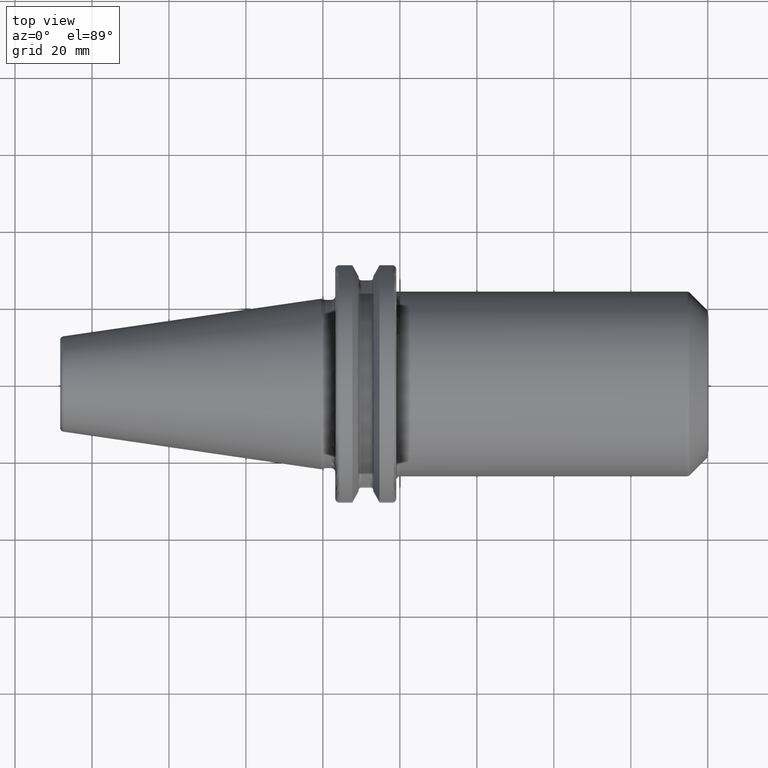
[diagram: clean part render]
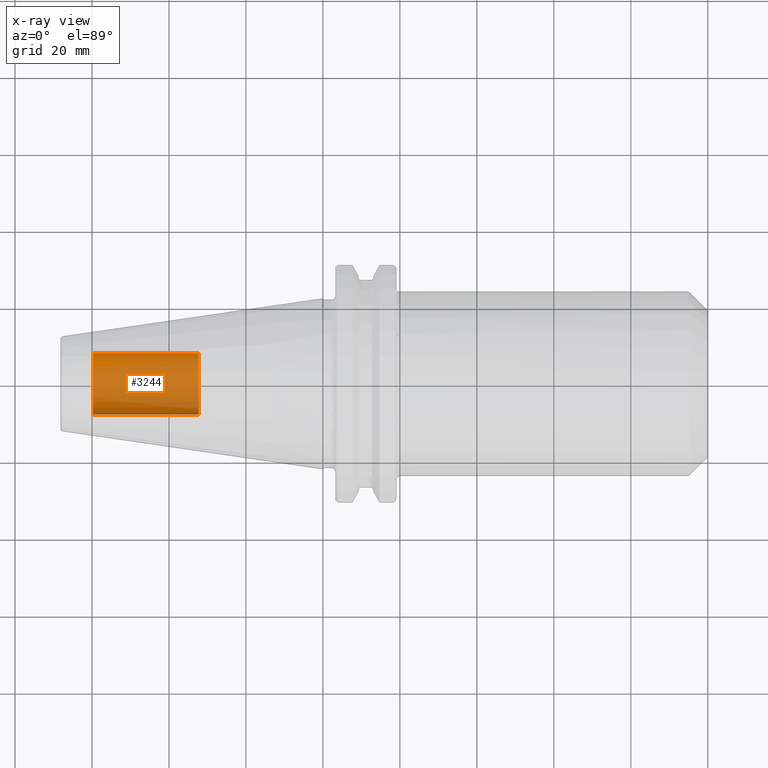
[diagram: x-ray — body ghosted, one internal face saturated and labeled with its STEP entity id]
A machine part, top view, then the same camera in x-ray: the body is ghosted and one INTERNAL B-rep face — a face not visible from any outside direction — is saturated and labeled: STEP entity #3244.
In plain terms, the highlighted cylindrical surface (edge-blend (fillet) strip) has radius 8.0028 mm, axis along (1, 0, 0).
Its self-contained STEP definition (entity closure, byte-faithful):
#3179=CARTESIAN_POINT('',(-5.98E1,0.E0,0.E0));
#3180=DIRECTION('',(-1.E0,0.E0,0.E0));
#3181=DIRECTION('',(0.E0,1.E0,0.E0));
#3182=AXIS2_PLACEMENT_3D('',#3179,#3180,#3181);
#3184=DIRECTION('',(1.E0,0.E0,0.E0));
#3185=VECTOR('',#3184,2.755E1);
#3186=CARTESIAN_POINT('',(-5.98E1,-8.00275E0,0.E0));
#3187=LINE('',#3186,#3185);
#3193=DIRECTION('',(1.E0,0.E0,0.E0));
#3194=VECTOR('',#3193,2.755E1);
#3195=CARTESIAN_POINT('',(-5.98E1,8.00275E0,0.E0));
#3196=LINE('',#3195,#3194);
#3202=CARTESIAN_POINT('',(-3.225E1,0.E0,0.E0));
#3203=DIRECTION('',(1.E0,0.E0,0.E0));
#3204=DIRECTION('',(0.E0,-1.E0,0.E0));
#3205=AXIS2_PLACEMENT_3D('',#3202,#3203,#3204);
#3217=CARTESIAN_POINT('',(-5.98E1,8.00275E0,0.E0));
#3218=CARTESIAN_POINT('',(-5.98E1,-8.00275E0,0.E0));
#3219=VERTEX_POINT('',#3217);
#3220=VERTEX_POINT('',#3218);
#3221=CARTESIAN_POINT('',(-3.225E1,8.00275E0,0.E0));
#3222=CARTESIAN_POINT('',(-3.225E1,-8.00275E0,0.E0));
#3223=VERTEX_POINT('',#3221);
#3224=VERTEX_POINT('',#3222);
#3229=CARTESIAN_POINT('',(-5.98E1,0.E0,0.E0));
#3230=DIRECTION('',(1.E0,0.E0,0.E0));
#3231=DIRECTION('',(0.E0,1.E0,0.E0));
#3232=AXIS2_PLACEMENT_3D('',#3229,#3230,#3231);
#3233=CYLINDRICAL_SURFACE('',#3232,8.00275E0);
#3235=ORIENTED_EDGE('',*,*,#3234,.T.);
#3237=ORIENTED_EDGE('',*,*,#3236,.T.);
#3239=ORIENTED_EDGE('',*,*,#3238,.T.);
#3241=ORIENTED_EDGE('',*,*,#3240,.F.);
#3242=EDGE_LOOP('',(#3235,#3237,#3239,#3241));
#3243=FACE_OUTER_BOUND('',#3242,.F.);
#3244=ADVANCED_FACE('',(#3243),#3233,.T.);
#3183=CIRCLE('',#3182,8.00275E0);
#3206=CIRCLE('',#3205,8.00275E0);
#3234=EDGE_CURVE('',#3219,#3220,#3183,.T.);
#3236=EDGE_CURVE('',#3220,#3224,#3187,.T.);
#3238=EDGE_CURVE('',#3224,#3223,#3206,.T.);
#3240=EDGE_CURVE('',#3219,#3223,#3196,.T.);